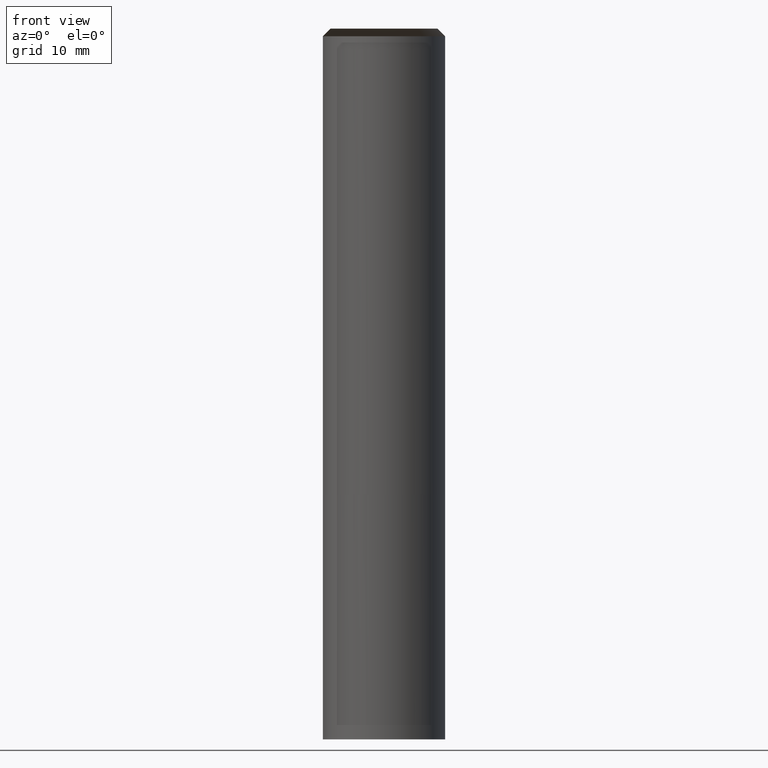
[diagram: clean part render]
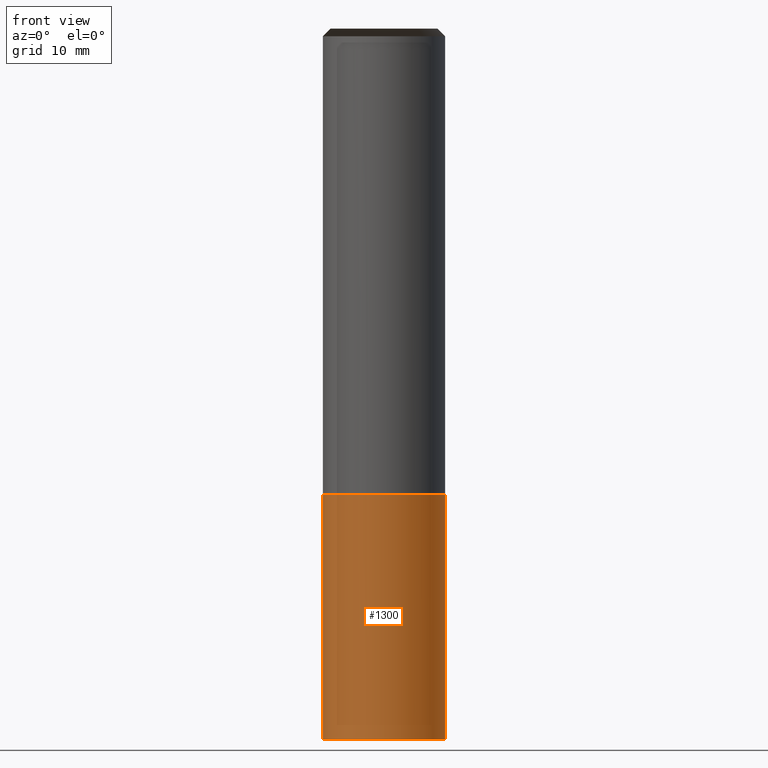
[diagram: same view with one face highlighted and labeled with its STEP entity id]
A machine part, front view. The second image highlights one B-rep face of the part: STEP entity #1300.
In plain terms, the highlighted face is a freeform B-spline surface patch.
Its self-contained STEP definition (entity closure, byte-faithful):
#109=CARTESIAN_POINT('',(0.0,-8.0,-32.0));
#1174=CARTESIAN_POINT('',(8.0,0.0,-32.0));
#1178=CARTESIAN_POINT('',(-8.0,0.0,-32.0));
#1179=CARTESIAN_POINT('',(8.0,0.0,0.0));
#1183=CARTESIAN_POINT('',(-8.0,0.0,0.0));
#1185=CARTESIAN_POINT('',(-8.0,-8.0,-32.0));
#1186=CARTESIAN_POINT('',(8.0,-8.0,-32.0));
#1187=CARTESIAN_POINT('',(-8.0,-8.0,0.0));
#1188=CARTESIAN_POINT('',(0.0,-8.0,0.0));
#1189=CARTESIAN_POINT('',(8.0,-8.0,0.0));
#1281=(
BOUNDED_SURFACE()
B_SPLINE_SURFACE(1,2,(
(#1178,#1185,#109,#1186,#1174),
(#1183,#1187,#1188,#1189,#1179)
), .UNSPECIFIED.,.F.,.F.,.F.)
B_SPLINE_SURFACE_WITH_KNOTS((2,2),(3,2,3),(
0.0,1.0),(
0.0,0.5,1.0), .UNSPECIFIED.)
GEOMETRIC_REPRESENTATION_ITEM()
RATIONAL_B_SPLINE_SURFACE(((1.0,0.707106781187,1.0,0.707106781187,1.0),
(1.0,0.707106781187,1.0,0.707106781187,1.0)
))
REPRESENTATION_ITEM('')
SURFACE()
);
#1282=(
BOUNDED_CURVE()
B_SPLINE_CURVE(2,(#1174,#1186,#109,#1185,#1178),.UNSPECIFIED.,.F.,.F.)
B_SPLINE_CURVE_WITH_KNOTS((3,2,3),
(0.0,0.5,1.0),.UNSPECIFIED.)
CURVE()
GEOMETRIC_REPRESENTATION_ITEM()
RATIONAL_B_SPLINE_CURVE((1.0,0.707106781187,1.0,0.707106781187,1.0))
REPRESENTATION_ITEM('')
);
#1283=(
BOUNDED_CURVE()
B_SPLINE_CURVE(1,(#1178,#1183),.UNSPECIFIED.,.F.,.F.)
B_SPLINE_CURVE_WITH_KNOTS((2,2),
(0.0,1.0),.UNSPECIFIED.)
CURVE()
GEOMETRIC_REPRESENTATION_ITEM()
RATIONAL_B_SPLINE_CURVE((1.0,1.0))
REPRESENTATION_ITEM('')
);
#1284=(
BOUNDED_CURVE()
B_SPLINE_CURVE(2,(#1183,#1187,#1188,#1189,#1179),.UNSPECIFIED.,.F.,.F.)
B_SPLINE_CURVE_WITH_KNOTS((3,2,3),
(0.0,0.5,1.0),.UNSPECIFIED.)
CURVE()
GEOMETRIC_REPRESENTATION_ITEM()
RATIONAL_B_SPLINE_CURVE((1.0,0.707106781187,1.0,0.707106781187,1.0))
REPRESENTATION_ITEM('')
);
#1285=(
BOUNDED_CURVE()
B_SPLINE_CURVE(1,(#1179,#1174),.UNSPECIFIED.,.F.,.F.)
B_SPLINE_CURVE_WITH_KNOTS((2,2),
(0.0,1.0),.UNSPECIFIED.)
CURVE()
GEOMETRIC_REPRESENTATION_ITEM()
RATIONAL_B_SPLINE_CURVE((1.0,1.0))
REPRESENTATION_ITEM('')
);
#1286=VERTEX_POINT('',#1174);
#1287=VERTEX_POINT('',#1178);
#1288=VERTEX_POINT('',#1179);
#1289=VERTEX_POINT('',#1183);
#1290=EDGE_CURVE('',#1286,#1287,#1282,.T.);
#1291=EDGE_CURVE('',#1287,#1289,#1283,.T.);
#1292=EDGE_CURVE('',#1289,#1288,#1284,.T.);
#1293=EDGE_CURVE('',#1288,#1286,#1285,.T.);
#1294=ORIENTED_EDGE('',*,*,#1290,.T.);
#1295=ORIENTED_EDGE('',*,*,#1291,.T.);
#1296=ORIENTED_EDGE('',*,*,#1292,.T.);
#1297=ORIENTED_EDGE('',*,*,#1293,.T.);
#1298=EDGE_LOOP('',(#1294,#1295,#1296,#1297));
#1299=FACE_OUTER_BOUND('',#1298,.T.);
#1300=ADVANCED_FACE('',(#1299),#1281,.T.);